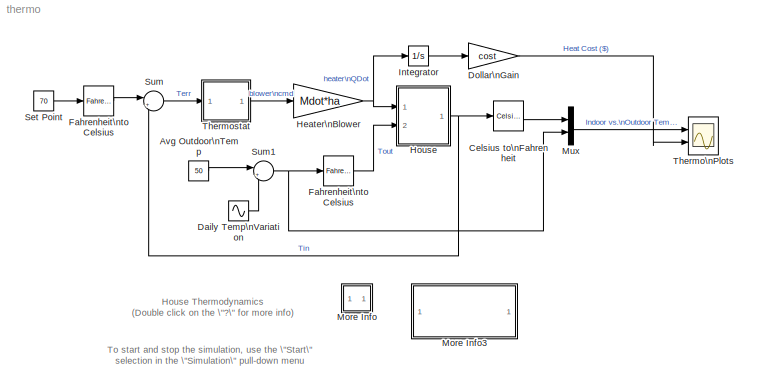
MODEL thermo
KIND model
CONFIG PreLoadFcn = thermdat
BLOCK [Constant] Avg Outdoor\nTemp
  Value = 50
BLOCK [Reference] Celsius to\nFahrenheit  REF=simulink_extras/Transformations/Celsius to\nFahrenheit
  Ports = [1, 1]
  ShowPortLabels = on
  SourceBlock = simulink_extras/Transformations/Celsius to\nFahrenheit
  SourceType = CelsiusToFahrenheit
BLOCK [Sin] Daily Temp\nVariation
  Amplitude = 15
  Frequency = 2*pi/(24*3600)
  Ports = [0, 1]
  SampleTime = 0
BLOCK [Gain] Dollar\nGain
  Gain = cost
BLOCK [Reference] Fahrenheit\nto Celsius  REF=simulink_extras/Transformations/Fahrenheit\nto Celsius
  Ports = [1, 1]
  ShowPortLabels = on
  SourceBlock = simulink_extras/Transformations/Fahrenheit\nto Celsius
  SourceType = FahrenheitToCelsius
BLOCK [Reference] Fahrenheit\nto Celsius   REF=simulink_extras/Transformations/Fahrenheit\nto Celsius
  Ports = [1, 1]
  ShowPortLabels = on
  SourceBlock = simulink_extras/Transformations/Fahrenheit\nto Celsius
  SourceType = FahrenheitToCelsius
BLOCK [Gain] Heater\nBlower
  Gain = Mdot*ha
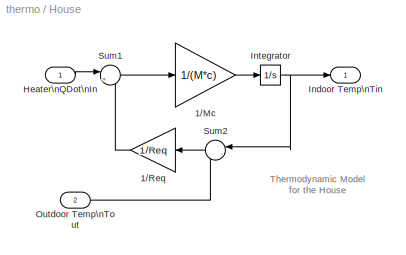
BLOCK [SubSystem] House
  MaskDisplay = plot(0,0,100,100,[20,80,80,20,20],[20,20,70,70,20],[15,50,85,15],[70,90,70,70],[42,42,29,29],[20,44,44,20],[52,68,68,52,52],[55,55,44,44,55])
  MaskIconFrame = on
  MaskIconOpaque = on
  MaskIconRotate = none
  MaskIconUnits = autoscale
  MinAlgLoopOccurrences = off
  Ports = [2, 1]
  PropExecContextAcrossSSBoundary = on
  RTWSystemCode = Auto
  TreatAsAtomicUnit = off
BLOCK [Gain] House/1//Mc
  Gain = 1/(M*c)
BLOCK [Gain] House/1//Req
  Gain = 1/Req
BLOCK [Inport] House/Heater\nQDot\nIn
  IconDisplay = Port number
  LatchInput = off
  Port = 1
BLOCK [Outport] House/Indoor Temp\nTin
  IconDisplay = Port number
  InitialOutput = 0
BLOCK [Integrator] House/Integrator
  InitialCondition = TinIC
  Ports = [1, 1]
BLOCK [Inport] House/Outdoor Temp\nTout
  IconDisplay = Port number
  LatchInput = off
  Port = 2
BLOCK [Sum] House/Sum1
  IconShape = round
  Inputs = |++
  Ports = [2, 1]
BLOCK [Sum] House/Sum2
  IconShape = round
  Inputs = |-+
  Ports = [2, 1]
BLOCK [Integrator] Integrator
  Ports = [1, 1]
BLOCK [SubSystem] More Info
  MaskDisplay = disp('?')
  MaskIconFrame = on
  MaskIconOpaque = on
  MaskIconRotate = none
  MaskIconUnits = autoscale
  MinAlgLoopOccurrences = off
  Ports = []
  PropExecContextAcrossSSBoundary = on
  RTWSystemCode = Auto
  TreatAsAtomicUnit = off
BLOCK [SubSystem] More Info3
  MaskDisplay = disp('Double click\\nhere for\\nSimulink Help')
  MaskIconFrame = on
  MaskIconOpaque = on
  MaskIconRotate = none
  MaskIconUnits = autoscale
  MinAlgLoopOccurrences = off
  OpenFcn = simcad(bdroot);
  Ports = []
  PropExecContextAcrossSSBoundary = on
  RTWSystemCode = Auto
  TreatAsAtomicUnit = off
BLOCK [Mux] Mux
  DisplayOption = bar
  Inputs = 2
  Ports = [2, 1]
BLOCK [Constant] Set Point
  Value = 70
BLOCK [Sum] Sum
  IconShape = round
  Inputs = |+-
  Ports = [2, 1]
BLOCK [Sum] Sum1
  IconShape = round
  Inputs = |++
  Ports = [2, 1]
BLOCK [Scope] Thermo\nPlots
  DataFormat = Array
  NumInputPorts = 2
  Ports = [2]
  TickLabels = on
  TimeRange = 172800
  YMax = 80~30
  YMin = 20~0
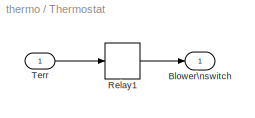
BLOCK [SubSystem] Thermostat
  MaskDisplay = plot(0,0,100,100,[20,80,80,20,20],[20,20,80,80,20],[70,65,50,35,30],[20,40,50,40,20],[45,40,43],[47,59,45],[30,30],[60,60],[40,40],[65,65],[50,50],[70,70],[60,60],[65,65],[70,70],[60,60])
  MaskIconFrame = on
  MaskIconOpaque = on
  MaskIconRotate = none
  MaskIconUnits = autoscale
  MinAlgLoopOccurrences = off
  Ports = [1, 1]
  PropExecContextAcrossSSBoundary = on
  RTWSystemCode = Auto
  TreatAsAtomicUnit = off
BLOCK [Outport] Thermostat/Blower\nswitch
  IconDisplay = Port number
  InitialOutput = 0
BLOCK [Relay] Thermostat/Relay1
  OffSwitchValue = -5*(5/9)
  OnSwitchValue = 5*(5/9)
BLOCK [Inport] Thermostat/Terr
  IconDisplay = Port number
  LatchInput = off
  Port = 1
ANNOTATION (root): House Thermodynamics\n(Double click on the \"?\" for more info)
ANNOTATION (root): To start and stop the simulation, use the \"Start\"\nselection in the \"Simulation\" pull-down menu
ANNOTATION House: Thermodynamic Model\nfor the House
ANNOTATION More Info: Examine the file thermdat.m to see the \nsimulation variables you can change at will.\n
ANNOTATION More Info: This system models the thermodynamics of a house.\nThe variables are initialized by a file \ncalled thermdat.m.
LINE Avg Outdoor\nTemp:1 -> Sum1:1
LINE Celsius to\nFahrenheit:1 -> Mux:1
LINE Daily Temp\nVariation:1 -> Sum1:2
LINE Dollar\nGain:1 -> Thermo\nPlots:2
LINE Fahrenheit\nto Celsius :1 -> Sum:1
LINE Fahrenheit\nto Celsius:1 -> House:2
NET Heater\nBlower:1 -> House:1, Integrator:1
LINE House/1//Mc:1 -> House/Integrator:1
LINE House/1//Req:1 -> House/Sum1:2
LINE House/Heater\nQDot\nIn:1 -> House/Sum1:1
NET House/Integrator:1 -> House/Indoor Temp\nTin:1, House/Sum2:1
LINE House/Outdoor Temp\nTout:1 -> House/Sum2:2
LINE House/Sum1:1 -> House/1//Mc:1
LINE House/Sum2:1 -> House/1//Req:1
NET House:1 -> Celsius to\nFahrenheit:1, Sum:2
LINE Integrator:1 -> Dollar\nGain:1
LINE Mux:1 -> Thermo\nPlots:1
LINE Set Point:1 -> Fahrenheit\nto Celsius :1
NET Sum1:1 -> Fahrenheit\nto Celsius:1, Mux:2
LINE Sum:1 -> Thermostat:1
LINE Thermostat/Relay1:1 -> Thermostat/Blower\nswitch:1
LINE Thermostat/Terr:1 -> Thermostat/Relay1:1
LINE Thermostat:1 -> Heater\nBlower:1
note: NET lines group one-source signal fan-out (src -> all destinations, sorted); 1:1 wires keep LINE
